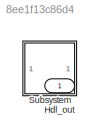
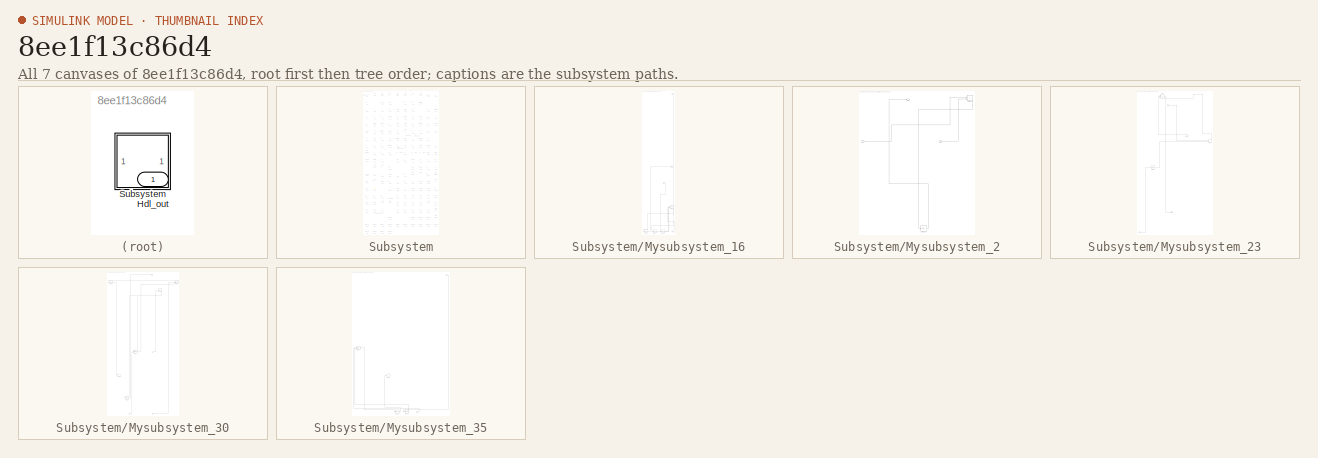
[diagram: thumbnail index - all 7 canvases of the model, root first then tree order]
MODEL slx_8ee1f13c86d4
KIND model
CONFIG AbsTol = auto
CONFIG EnableMultiTasking = off
CONFIG FixedStep = auto
CONFIG MaxStep = auto
CONFIG MinStep = auto
CONFIG RelTol = 1e-3
CONFIG SampleTimeConstraint = Unconstrained
CONFIG SolverName = VariableStepAuto
CONFIG StartTime = 0.0
CONFIG StopTime = 10.0
BLOCK [Outport] Hdl_out
  OutDataTypeStr = uint8
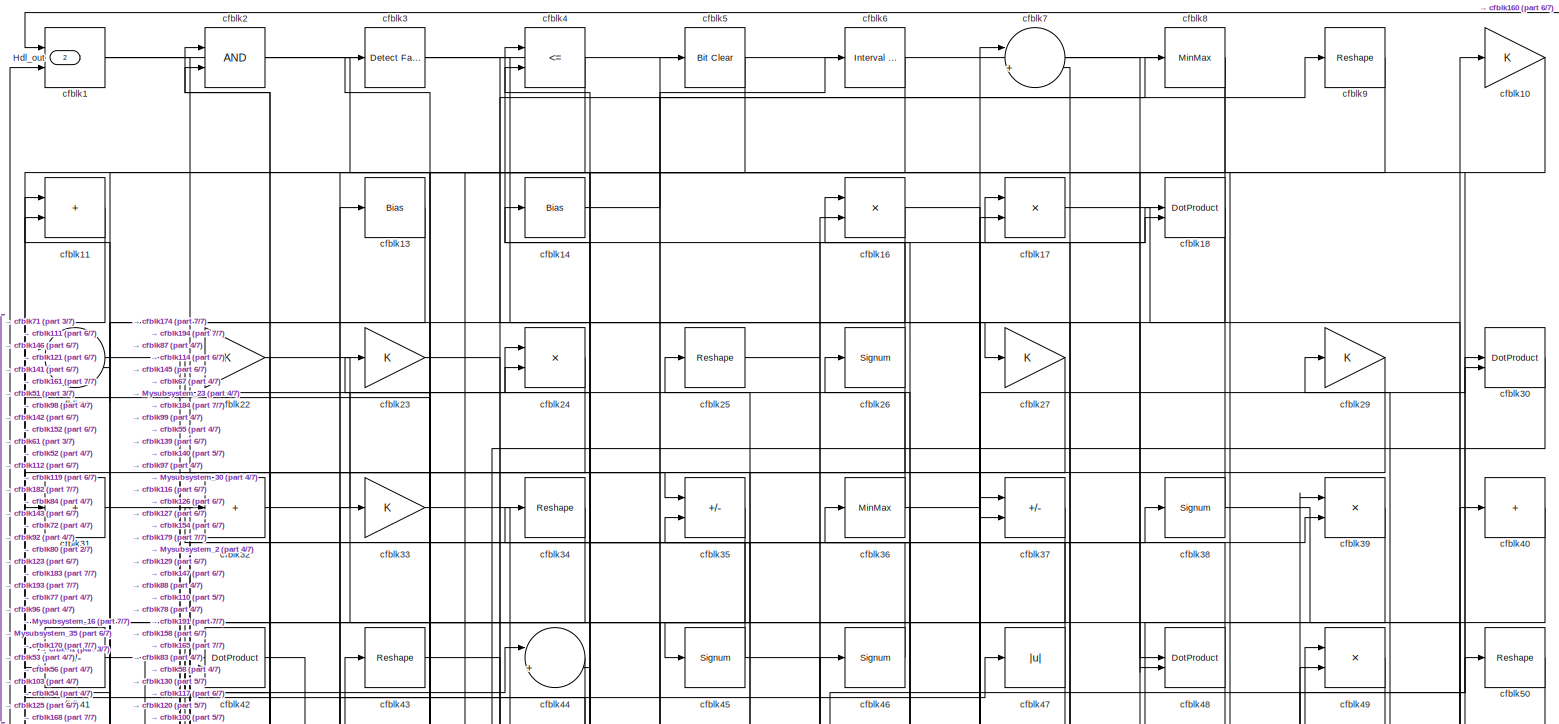
[diagram: Subsystem - part 1/7, full width, top band]
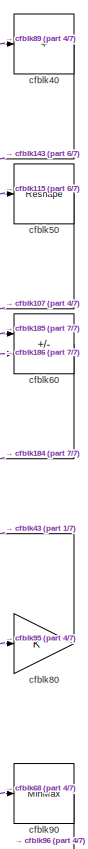
[diagram: Subsystem - part 2/7, top right region]
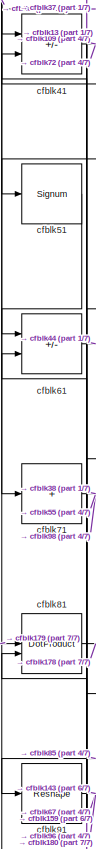
[diagram: Subsystem - part 3/7, middle left region]
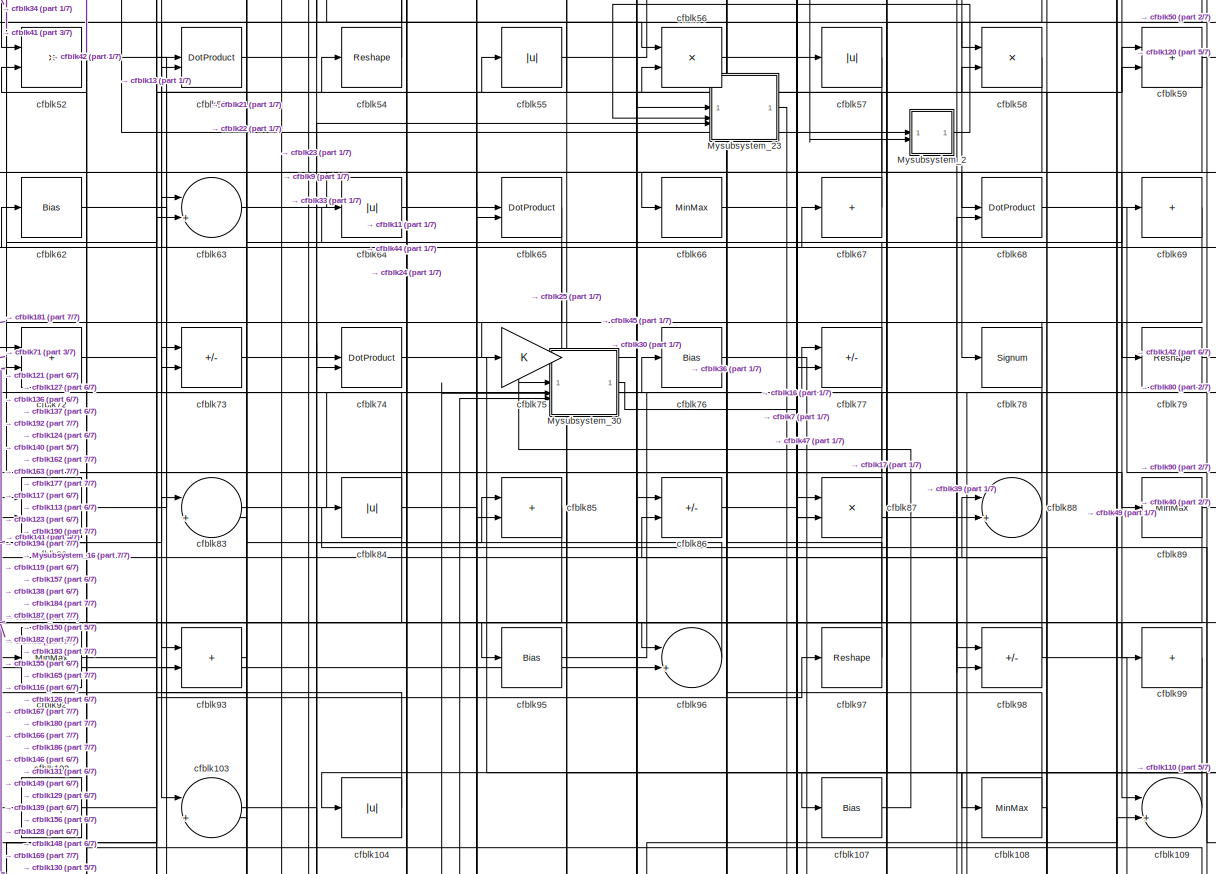
[diagram: Subsystem - part 4/7, full width, middle band]
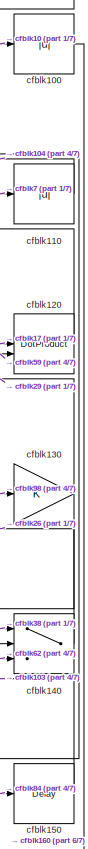
[diagram: Subsystem - part 5/7, middle right region]
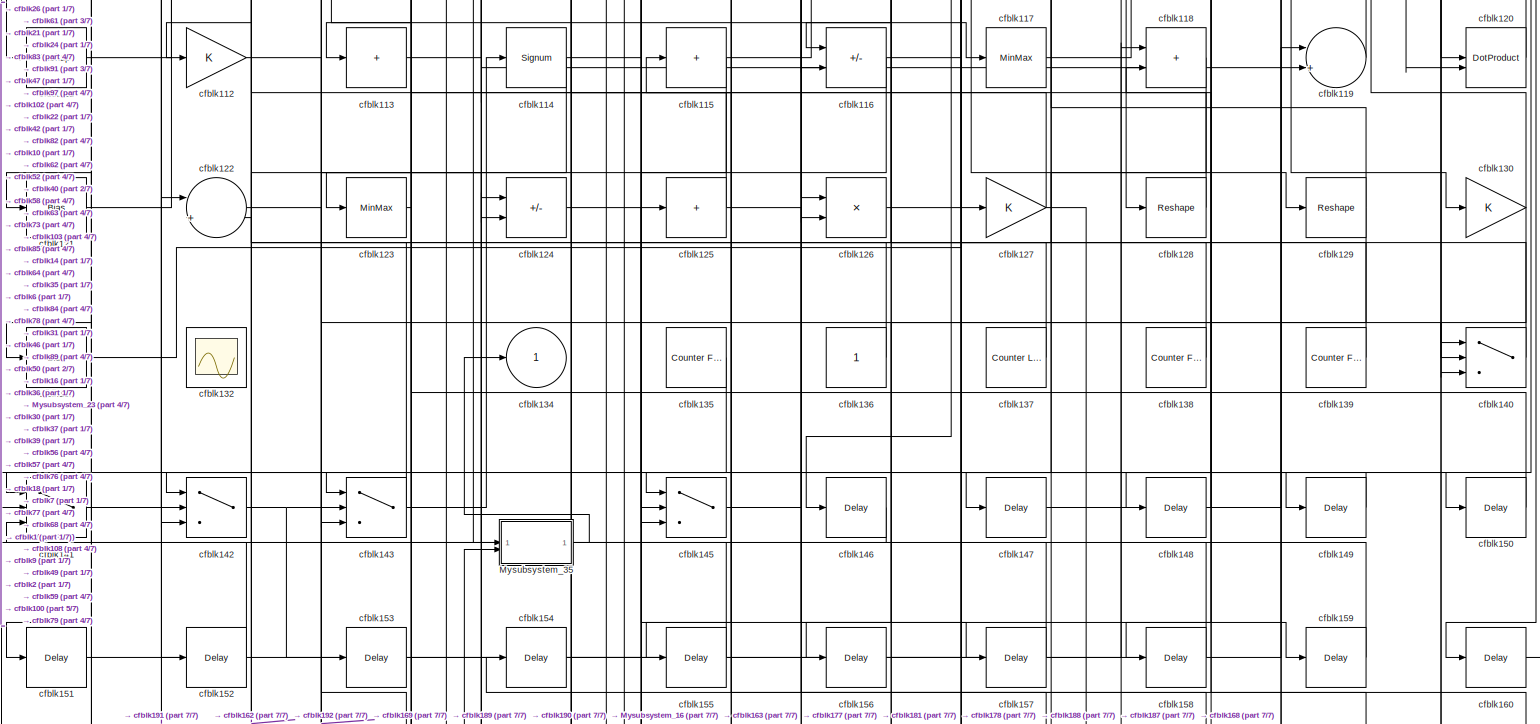
[diagram: Subsystem - part 6/7, full width, bottom band]
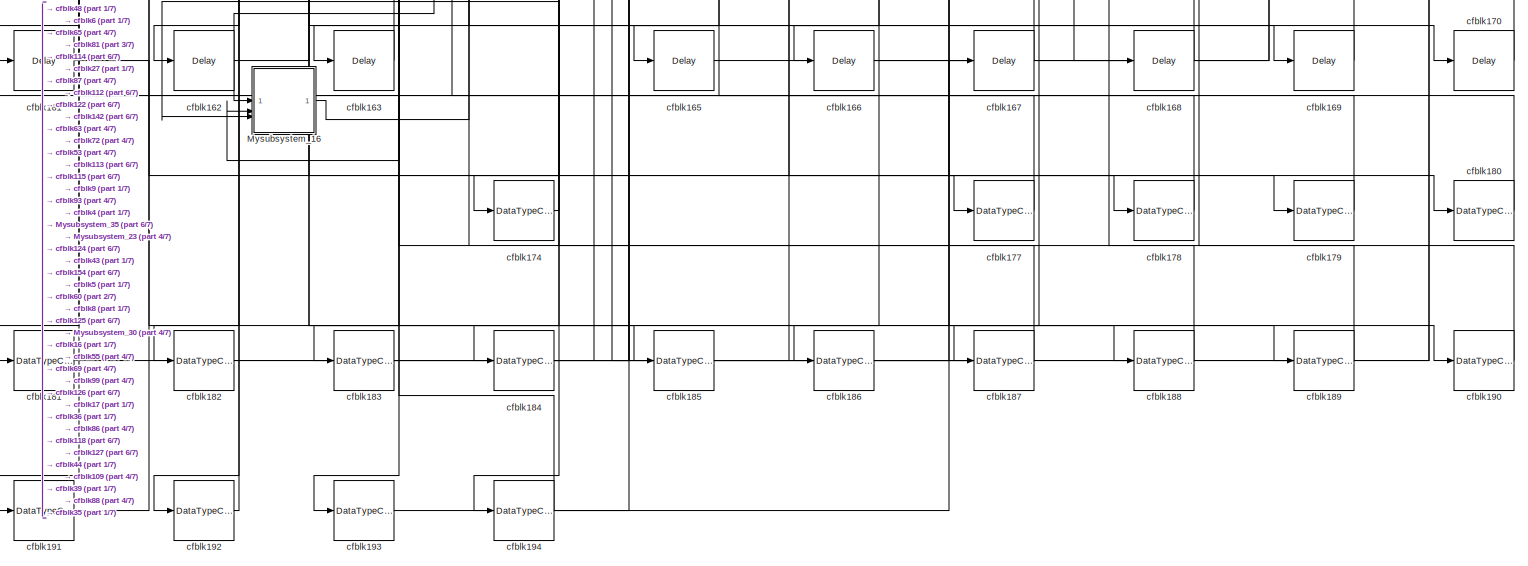
[diagram: Subsystem - part 7/7, full width, bottom band]
BLOCK [SubSystem] Subsystem
BLOCK [Outport] Subsystem/Hdl_out
  OutDataTypeStr = uint8
  Port = 2
BLOCK [SubSystem] Subsystem/Mysubsystem_16
  RTWFcnName = Mysubsystem_16
  RTWFcnNameOpts = User specified
  RTWFileNameOpts = Use function name
  RTWSystemCode = Reusable function
  TreatAsAtomicUnit = on
BLOCK [Inport] Subsystem/Mysubsystem_16/In1
BLOCK [Inport] Subsystem/Mysubsystem_16/In2
  Port = 2
BLOCK [Inport] Subsystem/Mysubsystem_16/In3
  Port = 3
BLOCK [Outport] Subsystem/Mysubsystem_16/Out1
BLOCK [Switch] Subsystem/Mysubsystem_16/cfblk144
  InputSameDT = off
  SaturateOnIntegerOverflow = off
BLOCK [DataTypeConversion] Subsystem/Mysubsystem_16/cfblk171
  OutDataTypeStr = uint8
  RndMeth = Floor
  SaturateOnIntegerOverflow = off
BLOCK [DataTypeConversion] Subsystem/Mysubsystem_16/cfblk172
  OutDataTypeStr = uint8
  RndMeth = Floor
  SaturateOnIntegerOverflow = off
BLOCK [DataTypeConversion] Subsystem/Mysubsystem_16/cfblk173
  OutDataTypeStr = uint8
  RndMeth = Floor
  SaturateOnIntegerOverflow = off
BLOCK [SubSystem] Subsystem/Mysubsystem_2
  RTWFcnName = Mysubsystem_2
  RTWFcnNameOpts = User specified
  RTWFileNameOpts = Use function name
  RTWSystemCode = Reusable function
  TreatAsAtomicUnit = on
BLOCK [Inport] Subsystem/Mysubsystem_2/In1
BLOCK [Inport] Subsystem/Mysubsystem_2/In2
  Port = 2
BLOCK [Outport] Subsystem/Mysubsystem_2/Out1
BLOCK [Abs] Subsystem/Mysubsystem_2/cfblk106
  SaturateOnIntegerOverflow = off
BLOCK [Product] Subsystem/Mysubsystem_2/cfblk19
  Inputs = */
  RndMeth = Zero
  SaturateOnIntegerOverflow = on
BLOCK [SubSystem] Subsystem/Mysubsystem_23
  RTWFcnName = Mysubsystem_23
  RTWFcnNameOpts = User specified
  RTWFileNameOpts = Use function name
  RTWSystemCode = Reusable function
  TreatAsAtomicUnit = on
BLOCK [Inport] Subsystem/Mysubsystem_23/In1
BLOCK [Inport] Subsystem/Mysubsystem_23/In2
  Port = 2
BLOCK [Inport] Subsystem/Mysubsystem_23/In3
  Port = 3
BLOCK [Outport] Subsystem/Mysubsystem_23/Out1
BLOCK [Product] Subsystem/Mysubsystem_23/cfblk15
  Inputs = */
  RndMeth = Zero
  SaturateOnIntegerOverflow = on
BLOCK [Sum] Subsystem/Mysubsystem_23/cfblk70
  Inputs = |++
BLOCK [Bias] Subsystem/Mysubsystem_23/cfblk94
  Bias = 0.0
  SaturateOnIntegerOverflow = off
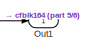
[diagram: Subsystem/Mysubsystem_30 - part 1/6, top center region]
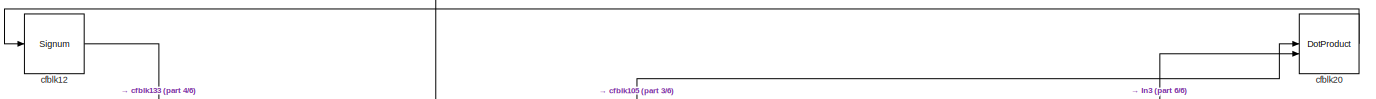
[diagram: Subsystem/Mysubsystem_30 - part 2/6, full width, top band]
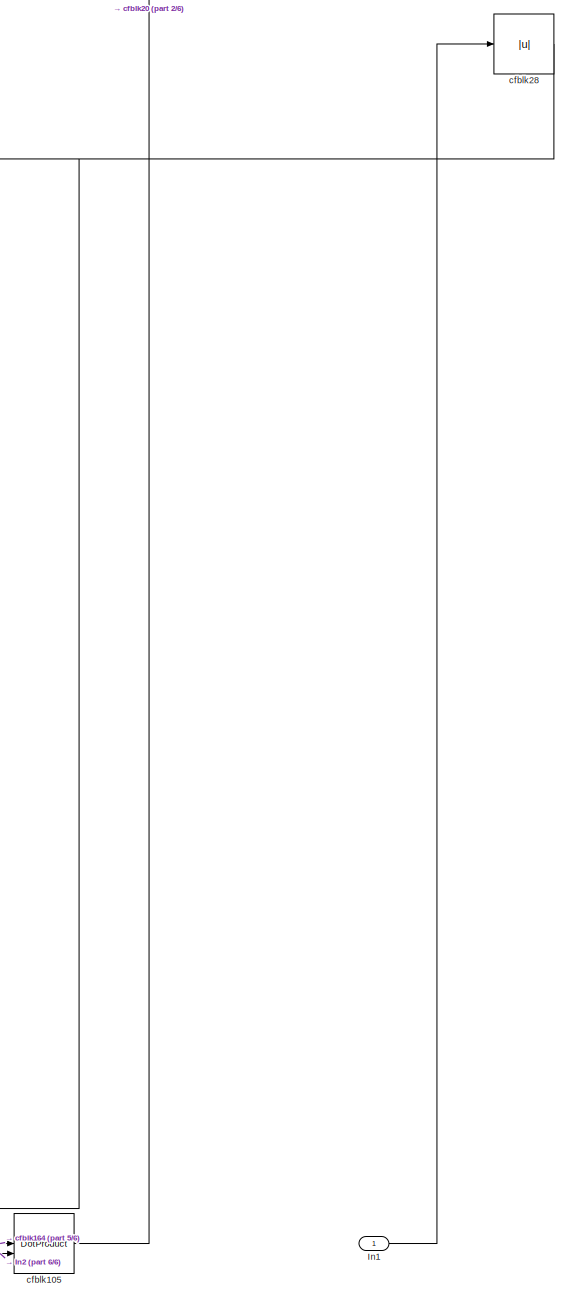
[diagram: Subsystem/Mysubsystem_30 - part 3/6, central region]
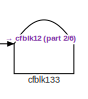
[diagram: Subsystem/Mysubsystem_30 - part 4/6, bottom left region]
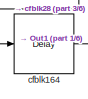
[diagram: Subsystem/Mysubsystem_30 - part 5/6, bottom left region]
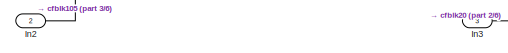
[diagram: Subsystem/Mysubsystem_30 - part 6/6, bottom center region]
BLOCK [SubSystem] Subsystem/Mysubsystem_30
  RTWFcnName = Mysubsystem_30
  RTWFcnNameOpts = User specified
  RTWFileNameOpts = Use function name
  RTWSystemCode = Reusable function
  TreatAsAtomicUnit = on
BLOCK [Inport] Subsystem/Mysubsystem_30/In1
BLOCK [Inport] Subsystem/Mysubsystem_30/In2
  Port = 2
BLOCK [Inport] Subsystem/Mysubsystem_30/In3
  Port = 3
BLOCK [Outport] Subsystem/Mysubsystem_30/Out1
BLOCK [DotProduct] Subsystem/Mysubsystem_30/cfblk105
  OutDataTypeStr = Inherit: Inherit via internal rule
BLOCK [Signum] Subsystem/Mysubsystem_30/cfblk12
BLOCK [Terminator] Subsystem/Mysubsystem_30/cfblk133
BLOCK [Delay] Subsystem/Mysubsystem_30/cfblk164
  InputPortMap = u0
  SampleTime = 1
BLOCK [DotProduct] Subsystem/Mysubsystem_30/cfblk20
  OutDataTypeStr = Inherit: Inherit via internal rule
BLOCK [Abs] Subsystem/Mysubsystem_30/cfblk28
  SaturateOnIntegerOverflow = off
BLOCK [SubSystem] Subsystem/Mysubsystem_35
  RTWFcnName = Mysubsystem_35
  RTWFcnNameOpts = User specified
  RTWFileNameOpts = Use function name
  RTWSystemCode = Reusable function
  TreatAsAtomicUnit = on
BLOCK [Inport] Subsystem/Mysubsystem_35/In1
BLOCK [Inport] Subsystem/Mysubsystem_35/In2
  Port = 2
BLOCK [DotProduct] Subsystem/Mysubsystem_35/cfblk101
  OutDataTypeStr = Inherit: Inherit via internal rule
BLOCK [Outport] Subsystem/Mysubsystem_35/cfblk134
  VectorParamsAs1DForOutWhenUnconnected = off
BLOCK [DataTypeConversion] Subsystem/Mysubsystem_35/cfblk175
  OutDataTypeStr = uint8
  RndMeth = Floor
  SaturateOnIntegerOverflow = off
BLOCK [DataTypeConversion] Subsystem/Mysubsystem_35/cfblk176
  OutDataTypeStr = uint8
  RndMeth = Floor
  SaturateOnIntegerOverflow = off
BLOCK [RelationalOperator] Subsystem/cfblk1
  InputSameDT = off
  Operator = <=
  OutDataTypeStr = boolean
BLOCK [Gain] Subsystem/cfblk10
  OutDataTypeStr = uint8
BLOCK [Abs] Subsystem/cfblk100
  OutDataTypeStr = uint8
  SaturateOnIntegerOverflow = off
BLOCK [Reshape] Subsystem/cfblk102
BLOCK [Sum] Subsystem/cfblk103
  Inputs = |++
  OutDataTypeStr = uint8
BLOCK [Abs] Subsystem/cfblk104
  OutDataTypeStr = uint8
  SaturateOnIntegerOverflow = off
BLOCK [Bias] Subsystem/cfblk107
  Bias = 0.0
  SaturateOnIntegerOverflow = off
BLOCK [MinMax] Subsystem/cfblk108
  OutDataTypeStr = uint8
BLOCK [Sum] Subsystem/cfblk109
  Inputs = |++
  OutDataTypeStr = uint8
BLOCK [Sum] Subsystem/cfblk11
  IconShape = rectangular
  OutDataTypeStr = uint8
BLOCK [Abs] Subsystem/cfblk110
  OutDataTypeStr = uint8
  SaturateOnIntegerOverflow = off
BLOCK [Reshape] Subsystem/cfblk111
BLOCK [Gain] Subsystem/cfblk112
  OutDataTypeStr = uint8
BLOCK [Sum] Subsystem/cfblk113
  IconShape = rectangular
  Inputs = +
  OutDataTypeStr = uint8
BLOCK [Signum] Subsystem/cfblk114
BLOCK [Sum] Subsystem/cfblk115
  IconShape = rectangular
  Inputs = +
  OutDataTypeStr = uint8
BLOCK [Sum] Subsystem/cfblk116
  IconShape = rectangular
  Inputs = +-
  OutDataTypeStr = uint8
BLOCK [MinMax] Subsystem/cfblk117
  OutDataTypeStr = uint8
BLOCK [Sum] Subsystem/cfblk118
  IconShape = rectangular
  OutDataTypeStr = uint8
BLOCK [Sum] Subsystem/cfblk119
  Inputs = |++
  OutDataTypeStr = uint8
BLOCK [DotProduct] Subsystem/cfblk120
  OutDataTypeStr = uint8
BLOCK [Bias] Subsystem/cfblk121
  Bias = 0.0
  SaturateOnIntegerOverflow = off
BLOCK [Sum] Subsystem/cfblk122
  Inputs = |++
  OutDataTypeStr = uint8
BLOCK [MinMax] Subsystem/cfblk123
  OutDataTypeStr = uint8
BLOCK [Sum] Subsystem/cfblk124
  IconShape = rectangular
  Inputs = +-
  OutDataTypeStr = uint8
BLOCK [Sum] Subsystem/cfblk125
  IconShape = rectangular
  Inputs = +
  OutDataTypeStr = uint8
BLOCK [Product] Subsystem/cfblk126
  Inputs = */
  OutDataTypeStr = uint8
  RndMeth = Zero
  SaturateOnIntegerOverflow = on
BLOCK [Gain] Subsystem/cfblk127
  OutDataTypeStr = uint8
BLOCK [Reshape] Subsystem/cfblk128
BLOCK [Reshape] Subsystem/cfblk129
BLOCK [Bias] Subsystem/cfblk13
  Bias = 0.0
  SaturateOnIntegerOverflow = off
BLOCK [Gain] Subsystem/cfblk130
  OutDataTypeStr = uint8
BLOCK [Bias] Subsystem/cfblk131
  Bias = 0.0
  SaturateOnIntegerOverflow = off
BLOCK [Scope] Subsystem/cfblk132
  Floating = on
  NumInputPorts = 1
  ScopeSpecificationString = Simulink.scopes.TimeScopeBlockCfg('CurrentConfiguration', extmgr.ConfigurationSet(extmgr.Configuration('Core','General UI',true,'FigureColor',[0.156862745098039 0.156862745098039 0.156862745098039]),extmgr.Configuration('Core','Source UI',true),extmgr.Configuration('Sources','WiredSimulink',true,'DataLoggingSaveFormat','StructureWithTime','DataLoggingLimitDataPoints',true,'DataLoggingDecimation','...<+2674ch>
BLOCK [Outport] Subsystem/cfblk134
  OutDataTypeStr = uint8
  VectorParamsAs1DForOutWhenUnconnected = off
BLOCK [Reference] Subsystem/cfblk135  REF=hdlsllib/Sources/Counter
Free-Running
  SourceBlock = hdlsllib/Sources/Counter\nFree-Running
  SourceType = Counter Free-Running
BLOCK [Constant] Subsystem/cfblk136
  OutDataTypeStr = uint8
  SampleTime = -1
BLOCK [Reference] Subsystem/cfblk137  REF=hdlsllib/Sources/Counter
Limited
  SourceBlock = hdlsllib/Sources/Counter\nLimited
  SourceType = Counter Limited
BLOCK [Reference] Subsystem/cfblk138  REF=hdlsllib/Sources/Counter
Free-Running
  SourceBlock = hdlsllib/Sources/Counter\nFree-Running
  SourceType = Counter Free-Running
BLOCK [Reference] Subsystem/cfblk139  REF=hdlsllib/Sources/Counter
Free-Running
  SourceBlock = hdlsllib/Sources/Counter\nFree-Running
  SourceType = Counter Free-Running
BLOCK [Bias] Subsystem/cfblk14
  Bias = 0.0
  SaturateOnIntegerOverflow = off
BLOCK [Switch] Subsystem/cfblk140
  InputSameDT = off
  OutDataTypeStr = uint8
  SaturateOnIntegerOverflow = off
BLOCK [Switch] Subsystem/cfblk141
  InputSameDT = off
  OutDataTypeStr = uint8
  SaturateOnIntegerOverflow = off
BLOCK [Switch] Subsystem/cfblk142
  InputSameDT = off
  OutDataTypeStr = uint8
  SaturateOnIntegerOverflow = off
BLOCK [Switch] Subsystem/cfblk143
  InputSameDT = off
  OutDataTypeStr = uint8
  SaturateOnIntegerOverflow = off
BLOCK [Switch] Subsystem/cfblk145
  InputSameDT = off
  OutDataTypeStr = uint8
  SaturateOnIntegerOverflow = off
BLOCK [Delay] Subsystem/cfblk146
  InputPortMap = u0
  SampleTime = 1
BLOCK [Delay] Subsystem/cfblk147
  InputPortMap = u0
  SampleTime = 1
BLOCK [Delay] Subsystem/cfblk148
  InputPortMap = u0
  SampleTime = 1
BLOCK [Delay] Subsystem/cfblk149
  InputPortMap = u0
  SampleTime = 1
BLOCK [Delay] Subsystem/cfblk150
  InputPortMap = u0
  SampleTime = 1
BLOCK [Delay] Subsystem/cfblk151
  InputPortMap = u0
  SampleTime = 1
BLOCK [Delay] Subsystem/cfblk152
  InputPortMap = u0
  SampleTime = 1
BLOCK [Delay] Subsystem/cfblk153
  InputPortMap = u0
  SampleTime = 1
BLOCK [Delay] Subsystem/cfblk154
  InputPortMap = u0
  SampleTime = 1
BLOCK [Delay] Subsystem/cfblk155
  InputPortMap = u0
  SampleTime = 1
BLOCK [Delay] Subsystem/cfblk156
  InputPortMap = u0
  SampleTime = 1
BLOCK [Delay] Subsystem/cfblk157
  InputPortMap = u0
  SampleTime = 1
BLOCK [Delay] Subsystem/cfblk158
  InputPortMap = u0
  SampleTime = 1
BLOCK [Delay] Subsystem/cfblk159
  InputPortMap = u0
  SampleTime = 1
BLOCK [Product] Subsystem/cfblk16
  Inputs = */
  OutDataTypeStr = uint8
  RndMeth = Zero
  SaturateOnIntegerOverflow = on
BLOCK [Delay] Subsystem/cfblk160
  InputPortMap = u0
  SampleTime = 1
BLOCK [Delay] Subsystem/cfblk161
  InputPortMap = u0
  SampleTime = 1
BLOCK [Delay] Subsystem/cfblk162
  InputPortMap = u0
  SampleTime = 1
BLOCK [Delay] Subsystem/cfblk163
  InputPortMap = u0
  SampleTime = 1
BLOCK [Delay] Subsystem/cfblk165
  InputPortMap = u0
  SampleTime = 1
BLOCK [Delay] Subsystem/cfblk166
  InputPortMap = u0
  SampleTime = 1
BLOCK [Delay] Subsystem/cfblk167
  InputPortMap = u0
  SampleTime = 1
BLOCK [Delay] Subsystem/cfblk168
  InputPortMap = u0
  SampleTime = 1
BLOCK [Delay] Subsystem/cfblk169
  InputPortMap = u0
  SampleTime = 1
BLOCK [Product] Subsystem/cfblk17
  Inputs = */
  OutDataTypeStr = uint8
  RndMeth = Zero
  SaturateOnIntegerOverflow = on
BLOCK [Delay] Subsystem/cfblk170
  InputPortMap = u0
  SampleTime = 1
BLOCK [DataTypeConversion] Subsystem/cfblk174
  OutDataTypeStr = uint8
  RndMeth = Floor
  SaturateOnIntegerOverflow = off
BLOCK [DataTypeConversion] Subsystem/cfblk177
  OutDataTypeStr = uint8
  RndMeth = Floor
  SaturateOnIntegerOverflow = off
BLOCK [DataTypeConversion] Subsystem/cfblk178
  OutDataTypeStr = uint8
  RndMeth = Floor
  SaturateOnIntegerOverflow = off
BLOCK [DataTypeConversion] Subsystem/cfblk179
  OutDataTypeStr = uint8
  RndMeth = Floor
  SaturateOnIntegerOverflow = off
BLOCK [DotProduct] Subsystem/cfblk18
  OutDataTypeStr = uint8
BLOCK [DataTypeConversion] Subsystem/cfblk180
  OutDataTypeStr = uint8
  RndMeth = Floor
  SaturateOnIntegerOverflow = off
BLOCK [DataTypeConversion] Subsystem/cfblk181
  OutDataTypeStr = uint8
  RndMeth = Floor
  SaturateOnIntegerOverflow = off
BLOCK [DataTypeConversion] Subsystem/cfblk182
  OutDataTypeStr = uint8
  RndMeth = Floor
  SaturateOnIntegerOverflow = off
BLOCK [DataTypeConversion] Subsystem/cfblk183
  OutDataTypeStr = uint8
  RndMeth = Floor
  SaturateOnIntegerOverflow = off
BLOCK [DataTypeConversion] Subsystem/cfblk184
  OutDataTypeStr = uint8
  RndMeth = Floor
  SaturateOnIntegerOverflow = off
BLOCK [DataTypeConversion] Subsystem/cfblk185
  OutDataTypeStr = uint8
  RndMeth = Floor
  SaturateOnIntegerOverflow = off
BLOCK [DataTypeConversion] Subsystem/cfblk186
  OutDataTypeStr = uint8
  RndMeth = Floor
  SaturateOnIntegerOverflow = off
BLOCK [DataTypeConversion] Subsystem/cfblk187
  OutDataTypeStr = uint8
  RndMeth = Floor
  SaturateOnIntegerOverflow = off
BLOCK [DataTypeConversion] Subsystem/cfblk188
  OutDataTypeStr = uint8
  RndMeth = Floor
  SaturateOnIntegerOverflow = off
BLOCK [DataTypeConversion] Subsystem/cfblk189
  OutDataTypeStr = uint8
  RndMeth = Floor
  SaturateOnIntegerOverflow = off
BLOCK [DataTypeConversion] Subsystem/cfblk190
  OutDataTypeStr = uint8
  RndMeth = Floor
  SaturateOnIntegerOverflow = off
BLOCK [DataTypeConversion] Subsystem/cfblk191
  OutDataTypeStr = uint8
  RndMeth = Floor
  SaturateOnIntegerOverflow = off
BLOCK [DataTypeConversion] Subsystem/cfblk192
  OutDataTypeStr = uint8
  RndMeth = Floor
  SaturateOnIntegerOverflow = off
BLOCK [DataTypeConversion] Subsystem/cfblk193
  OutDataTypeStr = uint8
  RndMeth = Floor
  SaturateOnIntegerOverflow = off
BLOCK [DataTypeConversion] Subsystem/cfblk194
  OutDataTypeStr = uint8
  RndMeth = Floor
  SaturateOnIntegerOverflow = off
BLOCK [Logic] Subsystem/cfblk2
  AllPortsSameDT = off
  OutDataTypeStr = boolean
BLOCK [Sum] Subsystem/cfblk21
  Inputs = |++
  OutDataTypeStr = uint8
BLOCK [Gain] Subsystem/cfblk22
  OutDataTypeStr = uint8
BLOCK [Gain] Subsystem/cfblk23
  OutDataTypeStr = uint8
BLOCK [Product] Subsystem/cfblk24
  Inputs = */
  OutDataTypeStr = uint8
  RndMeth = Zero
  SaturateOnIntegerOverflow = on
BLOCK [Reshape] Subsystem/cfblk25
BLOCK [Signum] Subsystem/cfblk26
BLOCK [Gain] Subsystem/cfblk27
  OutDataTypeStr = uint8
BLOCK [Gain] Subsystem/cfblk29
  OutDataTypeStr = uint8
BLOCK [Reference] Subsystem/cfblk3  REF=hdlsllib/Logic and Bit
Operations/Detect Fall
Negative
  SourceBlock = hdlsllib/Logic and Bit\nOperations/Detect Fall\nNegative
  SourceType = Detect Fall Negative
BLOCK [DotProduct] Subsystem/cfblk30
  OutDataTypeStr = uint8
BLOCK [Sum] Subsystem/cfblk31
  IconShape = rectangular
  Inputs = +
  OutDataTypeStr = uint8
BLOCK [Sum] Subsystem/cfblk32
  IconShape = rectangular
  Inputs = +
  OutDataTypeStr = uint8
BLOCK [Gain] Subsystem/cfblk33
  OutDataTypeStr = uint8
BLOCK [Reshape] Subsystem/cfblk34
BLOCK [Sum] Subsystem/cfblk35
  IconShape = rectangular
  Inputs = +-
  OutDataTypeStr = uint8
BLOCK [MinMax] Subsystem/cfblk36
  OutDataTypeStr = uint8
BLOCK [Sum] Subsystem/cfblk37
  IconShape = rectangular
  Inputs = +-
  OutDataTypeStr = uint8
BLOCK [Signum] Subsystem/cfblk38
BLOCK [Product] Subsystem/cfblk39
  Inputs = */
  OutDataTypeStr = uint8
  RndMeth = Zero
  SaturateOnIntegerOverflow = on
BLOCK [RelationalOperator] Subsystem/cfblk4
  InputSameDT = off
  Operator = <=
  OutDataTypeStr = boolean
BLOCK [Sum] Subsystem/cfblk40
  IconShape = rectangular
  Inputs = +
  OutDataTypeStr = uint8
BLOCK [Sum] Subsystem/cfblk41
  IconShape = rectangular
  Inputs = +-
  OutDataTypeStr = uint8
BLOCK [DotProduct] Subsystem/cfblk42
  OutDataTypeStr = uint8
BLOCK [Reshape] Subsystem/cfblk43
BLOCK [Sum] Subsystem/cfblk44
  Inputs = |++
  OutDataTypeStr = uint8
BLOCK [Signum] Subsystem/cfblk45
BLOCK [Signum] Subsystem/cfblk46
BLOCK [Abs] Subsystem/cfblk47
  OutDataTypeStr = uint8
  SaturateOnIntegerOverflow = off
BLOCK [DotProduct] Subsystem/cfblk48
  OutDataTypeStr = uint8
BLOCK [Product] Subsystem/cfblk49
  Inputs = */
  OutDataTypeStr = uint8
  RndMeth = Zero
  SaturateOnIntegerOverflow = on
BLOCK [Reference] Subsystem/cfblk5  REF=simulink/Logic and Bit
Operations/Bit Clear
  LibrarySourceBlock = hdlsllib/Logic and Bit\nOperations/Bit Clear
  SourceBlock = simulink/Logic and Bit\nOperations/Bit Clear
  SourceType = Bit Clear
BLOCK [Reshape] Subsystem/cfblk50
BLOCK [Signum] Subsystem/cfblk51
BLOCK [Product] Subsystem/cfblk52
  Inputs = */
  OutDataTypeStr = uint8
  RndMeth = Zero
  SaturateOnIntegerOverflow = on
BLOCK [DotProduct] Subsystem/cfblk53
  OutDataTypeStr = uint8
BLOCK [Reshape] Subsystem/cfblk54
BLOCK [Abs] Subsystem/cfblk55
  OutDataTypeStr = uint8
  SaturateOnIntegerOverflow = off
BLOCK [Product] Subsystem/cfblk56
  Inputs = */
  OutDataTypeStr = uint8
  RndMeth = Zero
  SaturateOnIntegerOverflow = on
BLOCK [Abs] Subsystem/cfblk57
  OutDataTypeStr = uint8
  SaturateOnIntegerOverflow = off
BLOCK [Product] Subsystem/cfblk58
  Inputs = */
  OutDataTypeStr = uint8
  RndMeth = Zero
  SaturateOnIntegerOverflow = on
BLOCK [Sum] Subsystem/cfblk59
  IconShape = rectangular
  OutDataTypeStr = uint8
BLOCK [Reference] Subsystem/cfblk6  REF=hdlsllib/Logic and Bit
Operations/Interval Test
  SourceBlock = hdlsllib/Logic and Bit\nOperations/Interval Test
  SourceType = Interval Test
BLOCK [Sum] Subsystem/cfblk60
  IconShape = rectangular
  Inputs = +-
  OutDataTypeStr = uint8
BLOCK [Sum] Subsystem/cfblk61
  IconShape = rectangular
  Inputs = +-
  OutDataTypeStr = uint8
BLOCK [Bias] Subsystem/cfblk62
  Bias = 0.0
  SaturateOnIntegerOverflow = off
BLOCK [Sum] Subsystem/cfblk63
  Inputs = |++
  OutDataTypeStr = uint8
BLOCK [Abs] Subsystem/cfblk64
  OutDataTypeStr = uint8
  SaturateOnIntegerOverflow = off
BLOCK [DotProduct] Subsystem/cfblk65
  OutDataTypeStr = uint8
BLOCK [MinMax] Subsystem/cfblk66
  OutDataTypeStr = uint8
BLOCK [Sum] Subsystem/cfblk67
  IconShape = rectangular
  Inputs = +
  OutDataTypeStr = uint8
BLOCK [DotProduct] Subsystem/cfblk68
  OutDataTypeStr = uint8
BLOCK [Sum] Subsystem/cfblk69
  IconShape = rectangular
  Inputs = +
  OutDataTypeStr = uint8
BLOCK [Sum] Subsystem/cfblk7
  Inputs = |++
  OutDataTypeStr = uint8
BLOCK [Sum] Subsystem/cfblk71
  IconShape = rectangular
  Inputs = +
  OutDataTypeStr = uint8
BLOCK [Sum] Subsystem/cfblk72
  IconShape = rectangular
  OutDataTypeStr = uint8
BLOCK [Sum] Subsystem/cfblk73
  IconShape = rectangular
  Inputs = +-
  OutDataTypeStr = uint8
BLOCK [DotProduct] Subsystem/cfblk74
  OutDataTypeStr = uint8
BLOCK [Gain] Subsystem/cfblk75
  OutDataTypeStr = uint8
BLOCK [Bias] Subsystem/cfblk76
  Bias = 0.0
  SaturateOnIntegerOverflow = off
BLOCK [Sum] Subsystem/cfblk77
  IconShape = rectangular
  Inputs = +-
  OutDataTypeStr = uint8
BLOCK [Signum] Subsystem/cfblk78
BLOCK [Reshape] Subsystem/cfblk79
BLOCK [MinMax] Subsystem/cfblk8
  OutDataTypeStr = uint8
BLOCK [Gain] Subsystem/cfblk80
  OutDataTypeStr = uint8
BLOCK [DotProduct] Subsystem/cfblk81
  OutDataTypeStr = uint8
BLOCK [Sum] Subsystem/cfblk82
  IconShape = rectangular
  OutDataTypeStr = uint8
BLOCK [Sum] Subsystem/cfblk83
  Inputs = |++
  OutDataTypeStr = uint8
BLOCK [Abs] Subsystem/cfblk84
  OutDataTypeStr = uint8
  SaturateOnIntegerOverflow = off
BLOCK [Sum] Subsystem/cfblk85
  IconShape = rectangular
  OutDataTypeStr = uint8
BLOCK [Sum] Subsystem/cfblk86
  IconShape = rectangular
  Inputs = +-
  OutDataTypeStr = uint8
BLOCK [Product] Subsystem/cfblk87
  Inputs = */
  OutDataTypeStr = uint8
  RndMeth = Zero
  SaturateOnIntegerOverflow = on
BLOCK [Sum] Subsystem/cfblk88
  Inputs = |++
  OutDataTypeStr = uint8
BLOCK [MinMax] Subsystem/cfblk89
  OutDataTypeStr = uint8
BLOCK [Reshape] Subsystem/cfblk9
BLOCK [MinMax] Subsystem/cfblk90
  OutDataTypeStr = uint8
BLOCK [Reshape] Subsystem/cfblk91
BLOCK [MinMax] Subsystem/cfblk92
  OutDataTypeStr = uint8
BLOCK [Sum] Subsystem/cfblk93
  IconShape = rectangular
  OutDataTypeStr = uint8
BLOCK [Bias] Subsystem/cfblk95
  Bias = 0.0
  SaturateOnIntegerOverflow = off
BLOCK [Sum] Subsystem/cfblk96
  Inputs = |++
  OutDataTypeStr = uint8
BLOCK [Reshape] Subsystem/cfblk97
BLOCK [Sum] Subsystem/cfblk98
  IconShape = rectangular
  Inputs = +-
  OutDataTypeStr = uint8
BLOCK [Sum] Subsystem/cfblk99
  IconShape = rectangular
  Inputs = +
  OutDataTypeStr = uint8
LINE Subsystem/Mysubsystem_16/In1:1 -> Subsystem/Mysubsystem_16/cfblk172:1
LINE Subsystem/Mysubsystem_16/In2:1 -> Subsystem/Mysubsystem_16/cfblk173:1
LINE Subsystem/Mysubsystem_16/In3:1 -> Subsystem/Mysubsystem_16/cfblk144:3
LINE Subsystem/Mysubsystem_16/cfblk144:1 -> Subsystem/Mysubsystem_16/cfblk171:1
LINE Subsystem/Mysubsystem_16/cfblk171:1 -> Subsystem/Mysubsystem_16/Out1:1
LINE Subsystem/Mysubsystem_16/cfblk172:1 -> Subsystem/Mysubsystem_16/cfblk144:1
LINE Subsystem/Mysubsystem_16/cfblk173:1 -> Subsystem/Mysubsystem_16/cfblk144:2
LINE Subsystem/Mysubsystem_16:1 -> Subsystem/Mysubsystem_23:3
LINE Subsystem/Mysubsystem_2/In1:1 -> Subsystem/Mysubsystem_2/cfblk19:1
LINE Subsystem/Mysubsystem_2/In2:1 -> Subsystem/Mysubsystem_2/cfblk19:2
LINE Subsystem/Mysubsystem_2/cfblk106:1 -> Subsystem/Mysubsystem_2/Out1:1
LINE Subsystem/Mysubsystem_2/cfblk19:1 -> Subsystem/Mysubsystem_2/cfblk106:1
LINE Subsystem/Mysubsystem_23/In1:1 -> Subsystem/Mysubsystem_23/cfblk70:1
LINE Subsystem/Mysubsystem_23/In2:1 -> Subsystem/Mysubsystem_23/cfblk15:2
LINE Subsystem/Mysubsystem_23/In3:1 -> Subsystem/Mysubsystem_23/cfblk94:1
LINE Subsystem/Mysubsystem_23/cfblk15:1 -> Subsystem/Mysubsystem_23/Out1:1
LINE Subsystem/Mysubsystem_23/cfblk70:1 -> Subsystem/Mysubsystem_23/cfblk15:1
LINE Subsystem/Mysubsystem_23/cfblk94:1 -> Subsystem/Mysubsystem_23/cfblk70:2
LINE Subsystem/Mysubsystem_23:1 -> Subsystem/cfblk146:1
LINE Subsystem/Mysubsystem_2:1 -> Subsystem/Mysubsystem_23:2
LINE Subsystem/Mysubsystem_30/In1:1 -> Subsystem/Mysubsystem_30/cfblk28:1
LINE Subsystem/Mysubsystem_30/In2:1 -> Subsystem/Mysubsystem_30/cfblk105:2
LINE Subsystem/Mysubsystem_30/In3:1 -> Subsystem/Mysubsystem_30/cfblk20:2
LINE Subsystem/Mysubsystem_30/cfblk105:1 -> Subsystem/Mysubsystem_30/cfblk20:1
LINE Subsystem/Mysubsystem_30/cfblk12:1 -> Subsystem/Mysubsystem_30/cfblk133:1
LINE Subsystem/Mysubsystem_30/cfblk164:1 -> Subsystem/Mysubsystem_30/Out1:1
LINE Subsystem/Mysubsystem_30/cfblk20:1 -> Subsystem/Mysubsystem_30/cfblk12:1
NET Subsystem/Mysubsystem_30/cfblk28:1 -> Subsystem/Mysubsystem_30/cfblk105:1, Subsystem/Mysubsystem_30/cfblk164:1
LINE Subsystem/Mysubsystem_30:1 -> Subsystem/cfblk7:1
LINE Subsystem/Mysubsystem_35/In1:1 -> Subsystem/Mysubsystem_35/cfblk176:1
LINE Subsystem/Mysubsystem_35/In2:1 -> Subsystem/Mysubsystem_35/cfblk101:2
LINE Subsystem/Mysubsystem_35/cfblk101:1 -> Subsystem/Mysubsystem_35/cfblk175:1
LINE Subsystem/Mysubsystem_35/cfblk175:1 -> Subsystem/Mysubsystem_35/cfblk134:1
LINE Subsystem/Mysubsystem_35/cfblk176:1 -> Subsystem/Mysubsystem_35/cfblk101:1
LINE Subsystem/Mysubsystem_35:1 -> Subsystem/cfblk134:1
LINE Subsystem/cfblk100:1 -> Subsystem/cfblk160:1
LINE Subsystem/cfblk102:1 -> Subsystem/cfblk59:1
LINE Subsystem/cfblk103:1 -> Subsystem/cfblk119:2
LINE Subsystem/cfblk104:1 -> Subsystem/cfblk92:1
LINE Subsystem/cfblk107:1 -> Subsystem/Mysubsystem_30:1
NET Subsystem/cfblk108:1 -> Subsystem/cfblk148:1, Subsystem/cfblk72:2
LINE Subsystem/cfblk109:1 -> Subsystem/cfblk108:1
NET Subsystem/cfblk10:1 -> Subsystem/cfblk100:1, Subsystem/cfblk143:2
LINE Subsystem/cfblk110:1 -> Subsystem/cfblk104:1
LINE Subsystem/cfblk111:1 -> Subsystem/cfblk47:1
LINE Subsystem/cfblk112:1 -> Subsystem/cfblk169:1
NET Subsystem/cfblk113:1 -> Subsystem/Mysubsystem_16:2, Subsystem/cfblk85:1
NET Subsystem/cfblk114:1 -> Subsystem/cfblk162:1, Subsystem/cfblk6:1
NET Subsystem/cfblk115:1 -> Subsystem/cfblk163:1, Subsystem/cfblk50:1
NET Subsystem/cfblk116:1 -> Subsystem/cfblk145:2, Subsystem/cfblk39:2
LINE Subsystem/cfblk117:1 -> Subsystem/cfblk10:1
LINE Subsystem/cfblk118:1 -> Subsystem/cfblk187:1
LINE Subsystem/cfblk119:1 -> Subsystem/cfblk2:1
LINE Subsystem/cfblk11:1 -> Subsystem/cfblk31:1
LINE Subsystem/cfblk120:1 -> Subsystem/cfblk84:1
LINE Subsystem/cfblk121:1 -> Subsystem/cfblk97:1
LINE Subsystem/cfblk122:1 -> Subsystem/cfblk190:1
LINE Subsystem/cfblk123:1 -> Subsystem/cfblk73:1
LINE Subsystem/cfblk124:1 -> Subsystem/cfblk157:1
NET Subsystem/cfblk125:1 -> Subsystem/cfblk14:1, Subsystem/cfblk159:1
NET Subsystem/cfblk126:1 -> Subsystem/cfblk188:1, Subsystem/cfblk30:2
NET Subsystem/cfblk127:1 -> Subsystem/cfblk168:1, Subsystem/cfblk82:1
LINE Subsystem/cfblk128:1 -> Subsystem/cfblk63:1
NET Subsystem/cfblk129:1 -> Subsystem/cfblk156:1, Subsystem/cfblk7:2
NET Subsystem/cfblk130:1 -> Subsystem/cfblk140:2, Subsystem/cfblk29:1
LINE Subsystem/cfblk131:1 -> Subsystem/cfblk57:1
LINE Subsystem/cfblk135:1 -> Subsystem/cfblk145:1
LINE Subsystem/cfblk136:1 -> Subsystem/cfblk102:1
LINE Subsystem/cfblk137:1 -> Subsystem/cfblk82:2
LINE Subsystem/cfblk138:1 -> Subsystem/cfblk64:1
NET Subsystem/cfblk139:1 -> Subsystem/cfblk16:1, Subsystem/cfblk77:1
LINE Subsystem/cfblk13:1 -> Subsystem/cfblk51:1
LINE Subsystem/cfblk140:1 -> Subsystem/cfblk26:1
LINE Subsystem/cfblk141:1 -> Subsystem/cfblk83:1
NET Subsystem/cfblk142:1 -> Subsystem/cfblk153:1, Subsystem/cfblk189:1
NET Subsystem/cfblk143:1 -> Subsystem/cfblk114:1, Subsystem/cfblk42:2
LINE Subsystem/cfblk145:1 -> Subsystem/cfblk46:1
LINE Subsystem/cfblk146:1 -> Subsystem/cfblk1:2
LINE Subsystem/cfblk147:1 -> Subsystem/cfblk49:2
LINE Subsystem/cfblk148:1 -> Subsystem/cfblk58:2
LINE Subsystem/cfblk149:1 -> Subsystem/cfblk141:2
LINE Subsystem/cfblk14:1 -> Subsystem/cfblk8:1
LINE Subsystem/cfblk150:1 -> Subsystem/cfblk103:2
LINE Subsystem/cfblk151:1 -> Subsystem/cfblk85:2
LINE Subsystem/cfblk152:1 -> Subsystem/cfblk141:3
LINE Subsystem/cfblk153:1 -> Subsystem/cfblk119:1
LINE Subsystem/cfblk154:1 -> Subsystem/cfblk37:1
LINE Subsystem/cfblk155:1 -> Subsystem/cfblk83:2
LINE Subsystem/cfblk156:1 -> Subsystem/cfblk68:2
LINE Subsystem/cfblk157:1 -> Subsystem/cfblk74:1
LINE Subsystem/cfblk158:1 -> Subsystem/cfblk2:2
LINE Subsystem/cfblk159:1 -> Subsystem/cfblk61:2
LINE Subsystem/cfblk160:1 -> Subsystem/cfblk1:1
LINE Subsystem/cfblk161:1 -> Subsystem/cfblk185:1
LINE Subsystem/cfblk162:1 -> Subsystem/cfblk63:2
LINE Subsystem/cfblk163:1 -> Subsystem/cfblk53:1
LINE Subsystem/cfblk165:1 -> Subsystem/cfblk39:1
LINE Subsystem/cfblk166:1 -> Subsystem/cfblk109:2
LINE Subsystem/cfblk167:1 -> Subsystem/cfblk86:1
LINE Subsystem/cfblk168:1 -> Subsystem/cfblk44:2
LINE Subsystem/cfblk169:1 -> Subsystem/cfblk88:1
NET Subsystem/cfblk16:1 -> Subsystem/cfblk123:1, Subsystem/cfblk21:2, Subsystem/cfblk77:2
LINE Subsystem/cfblk170:1 -> Subsystem/cfblk35:2
LINE Subsystem/cfblk174:1 -> Subsystem/Mysubsystem_16:3
LINE Subsystem/cfblk177:1 -> Subsystem/Mysubsystem_35:2
LINE Subsystem/cfblk178:1 -> Subsystem/cfblk115:1
LINE Subsystem/cfblk179:1 -> Subsystem/cfblk81:1
LINE Subsystem/cfblk17:1 -> Subsystem/cfblk120:1
LINE Subsystem/cfblk180:1 -> Subsystem/cfblk81:2
NET Subsystem/cfblk181:1 -> Subsystem/cfblk125:1, Subsystem/cfblk167:1
LINE Subsystem/cfblk182:1 -> Subsystem/cfblk65:1
LINE Subsystem/cfblk183:1 -> Subsystem/cfblk65:2
NET Subsystem/cfblk184:1 -> Subsystem/Mysubsystem_30:2, Subsystem/cfblk16:2
LINE Subsystem/cfblk185:1 -> Subsystem/cfblk60:1
LINE Subsystem/cfblk186:1 -> Subsystem/cfblk60:2
NET Subsystem/cfblk187:1 -> Subsystem/Mysubsystem_30:3, Subsystem/cfblk154:1
LINE Subsystem/cfblk188:1 -> Subsystem/cfblk118:1
LINE Subsystem/cfblk189:1 -> Subsystem/cfblk118:2
NET Subsystem/cfblk18:1 -> Subsystem/cfblk147:1, Subsystem/cfblk37:2
NET Subsystem/cfblk190:1 -> Subsystem/cfblk124:1, Subsystem/cfblk53:2
LINE Subsystem/cfblk191:1 -> Subsystem/cfblk122:1
LINE Subsystem/cfblk192:1 -> Subsystem/cfblk122:2
LINE Subsystem/cfblk193:1 -> Subsystem/cfblk5:1
NET Subsystem/cfblk194:1 -> Subsystem/cfblk17:2, Subsystem/cfblk93:2
LINE Subsystem/cfblk1:1 -> Subsystem/cfblk35:1
LINE Subsystem/cfblk21:1 -> Subsystem/cfblk152:1
NET Subsystem/cfblk22:1 -> Subsystem/cfblk112:1, Subsystem/cfblk127:1
LINE Subsystem/cfblk23:1 -> Subsystem/cfblk56:1
LINE Subsystem/cfblk24:1 -> Subsystem/cfblk142:3
NET Subsystem/cfblk25:1 -> Subsystem/Mysubsystem_23:1, Subsystem/cfblk18:1
NET Subsystem/cfblk26:1 -> Subsystem/cfblk111:1, Subsystem/cfblk4:2
LINE Subsystem/cfblk27:1 -> Subsystem/cfblk182:1
LINE Subsystem/cfblk29:1 -> Subsystem/cfblk45:1
LINE Subsystem/cfblk2:1 -> Subsystem/cfblk48:1
LINE Subsystem/cfblk30:1 -> Subsystem/Mysubsystem_35:1
LINE Subsystem/cfblk31:1 -> Subsystem/cfblk126:1
LINE Subsystem/cfblk32:1 -> Subsystem/cfblk24:1
LINE Subsystem/cfblk33:1 -> Subsystem/cfblk87:1
LINE Subsystem/cfblk34:1 -> Subsystem/cfblk52:1
NET Subsystem/cfblk35:1 -> Subsystem/cfblk121:1, Subsystem/cfblk141:1, Subsystem/cfblk145:3
NET Subsystem/cfblk36:1 -> Subsystem/cfblk116:1, Subsystem/cfblk179:1, Subsystem/cfblk18:2, Subsystem/cfblk3:1
LINE Subsystem/cfblk37:1 -> Subsystem/cfblk41:1
NET Subsystem/cfblk38:1 -> Subsystem/Hdl_out:1, Subsystem/cfblk140:1
LINE Subsystem/cfblk39:1 -> Subsystem/cfblk78:1
NET Subsystem/cfblk3:1 -> Subsystem/cfblk27:1, Subsystem/cfblk48:2
LINE Subsystem/cfblk40:1 -> Subsystem/cfblk143:1
NET Subsystem/cfblk41:1 -> Subsystem/cfblk109:1, Subsystem/cfblk72:1
LINE Subsystem/cfblk42:1 -> Subsystem/Mysubsystem_2:1
LINE Subsystem/cfblk43:1 -> Subsystem/cfblk170:1
LINE Subsystem/cfblk44:1 -> Subsystem/cfblk103:1
NET Subsystem/cfblk45:1 -> Subsystem/cfblk4:1, Subsystem/cfblk99:1
LINE Subsystem/cfblk46:1 -> Subsystem/cfblk32:1
NET Subsystem/cfblk47:1 -> Subsystem/Mysubsystem_2:2, Subsystem/cfblk34:1
NET Subsystem/cfblk48:1 -> Subsystem/cfblk191:1, Subsystem/cfblk23:1
LINE Subsystem/cfblk49:1 -> Subsystem/cfblk58:1
LINE Subsystem/cfblk4:1 -> Subsystem/Mysubsystem_16:1
LINE Subsystem/cfblk50:1 -> Subsystem/cfblk107:1
LINE Subsystem/cfblk51:1 -> Subsystem/cfblk61:1
LINE Subsystem/cfblk52:1 -> Subsystem/cfblk117:1
LINE Subsystem/cfblk53:1 -> Subsystem/cfblk9:1
LINE Subsystem/cfblk54:1 -> Subsystem/cfblk11:1
NET Subsystem/cfblk55:1 -> Subsystem/cfblk180:1, Subsystem/cfblk30:1
NET Subsystem/cfblk56:1 -> Subsystem/cfblk149:1, Subsystem/cfblk88:2
LINE Subsystem/cfblk57:1 -> Subsystem/cfblk66:1
LINE Subsystem/cfblk58:1 -> Subsystem/cfblk113:1
NET Subsystem/cfblk59:1 -> Subsystem/cfblk120:2, Subsystem/cfblk131:1
LINE Subsystem/cfblk5:1 -> Subsystem/cfblk194:1
LINE Subsystem/cfblk60:1 -> Subsystem/cfblk184:1
LINE Subsystem/cfblk61:1 -> Subsystem/cfblk44:1
NET Subsystem/cfblk62:1 -> Subsystem/cfblk124:2, Subsystem/cfblk140:3, Subsystem/cfblk74:2
LINE Subsystem/cfblk63:1 -> Subsystem/cfblk68:1
LINE Subsystem/cfblk64:1 -> Subsystem/cfblk56:2
LINE Subsystem/cfblk65:1 -> Subsystem/cfblk181:1
LINE Subsystem/cfblk66:1 -> Subsystem/cfblk89:1
LINE Subsystem/cfblk67:1 -> Subsystem/cfblk25:1
LINE Subsystem/cfblk68:1 -> Subsystem/cfblk90:1
LINE Subsystem/cfblk69:1 -> Subsystem/cfblk186:1
LINE Subsystem/cfblk6:1 -> Subsystem/cfblk161:1
NET Subsystem/cfblk71:1 -> Subsystem/cfblk38:1, Subsystem/cfblk55:1, Subsystem/cfblk98:1, Subsystem/cfblk98:2
NET Subsystem/cfblk72:1 -> Subsystem/cfblk13:1, Subsystem/cfblk177:1
LINE Subsystem/cfblk73:1 -> Subsystem/cfblk79:1
LINE Subsystem/cfblk74:1 -> Subsystem/cfblk128:1
NET Subsystem/cfblk75:1 -> Subsystem/cfblk59:2, Subsystem/cfblk62:1, Subsystem/cfblk95:1
LINE Subsystem/cfblk76:1 -> Subsystem/cfblk129:1
NET Subsystem/cfblk77:1 -> Subsystem/cfblk116:2, Subsystem/cfblk21:1
NET Subsystem/cfblk78:1 -> Subsystem/cfblk142:2, Subsystem/cfblk155:1, Subsystem/cfblk75:1, Subsystem/cfblk87:2
LINE Subsystem/cfblk79:1 -> Subsystem/cfblk142:1
LINE Subsystem/cfblk7:1 -> Subsystem/cfblk110:1
LINE Subsystem/cfblk80:1 -> Subsystem/cfblk43:1
LINE Subsystem/cfblk81:1 -> Subsystem/cfblk178:1
NET Subsystem/cfblk82:1 -> Subsystem/cfblk54:1, Subsystem/cfblk76:1
LINE Subsystem/cfblk83:1 -> Subsystem/cfblk49:1
NET Subsystem/cfblk84:1 -> Subsystem/cfblk150:1, Subsystem/cfblk151:1, Subsystem/cfblk42:1
LINE Subsystem/cfblk85:1 -> Subsystem/cfblk91:1
LINE Subsystem/cfblk86:1 -> Subsystem/cfblk69:1
NET Subsystem/cfblk87:1 -> Subsystem/cfblk192:1, Subsystem/cfblk24:2
NET Subsystem/cfblk88:1 -> Subsystem/cfblk17:1, Subsystem/cfblk86:2
NET Subsystem/cfblk89:1 -> Subsystem/cfblk126:2, Subsystem/cfblk40:1
NET Subsystem/cfblk8:1 -> Subsystem/cfblk174:1, Subsystem/cfblk193:1, Subsystem/cfblk71:1
LINE Subsystem/cfblk90:1 -> Subsystem/cfblk96:1
NET Subsystem/cfblk91:1 -> Subsystem/cfblk143:3, Subsystem/cfblk41:2, Subsystem/cfblk67:1, Subsystem/cfblk96:2
NET Subsystem/cfblk92:1 -> Subsystem/cfblk33:1, Subsystem/cfblk52:2
LINE Subsystem/cfblk93:1 -> Subsystem/cfblk73:2
LINE Subsystem/cfblk95:1 -> Subsystem/cfblk80:1
LINE Subsystem/cfblk96:1 -> Subsystem/cfblk22:1
NET Subsystem/cfblk97:1 -> Subsystem/cfblk36:1, Subsystem/cfblk93:1
NET Subsystem/cfblk98:1 -> Subsystem/cfblk11:2, Subsystem/cfblk130:1
NET Subsystem/cfblk99:1 -> Subsystem/cfblk165:1, Subsystem/cfblk166:1
NET Subsystem/cfblk9:1 -> Subsystem/cfblk158:1, Subsystem/cfblk183:1
note: NET lines group one-source signal fan-out (src -> all destinations, sorted); 1:1 wires keep LINE
